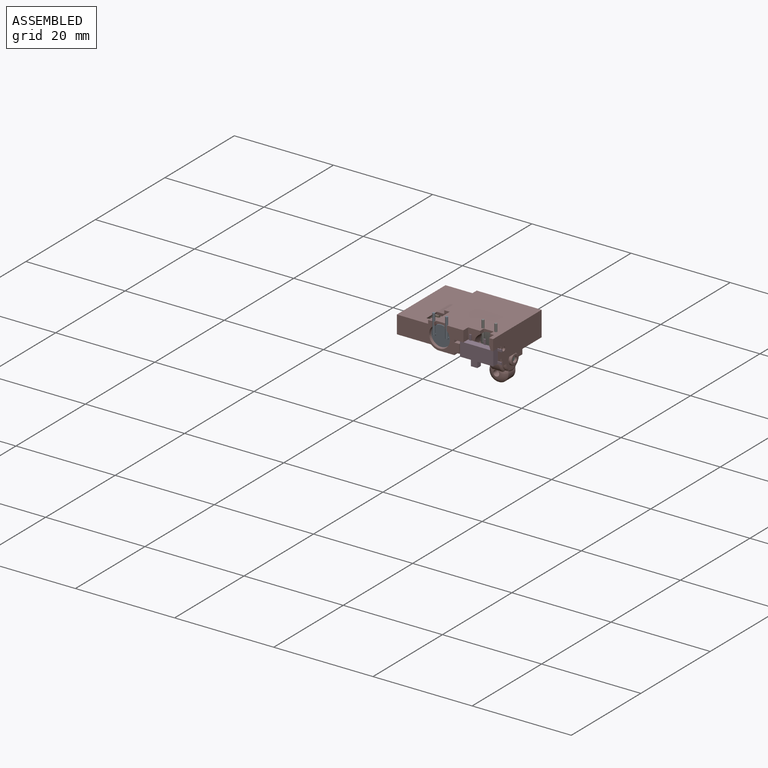
[diagram: assembled view]
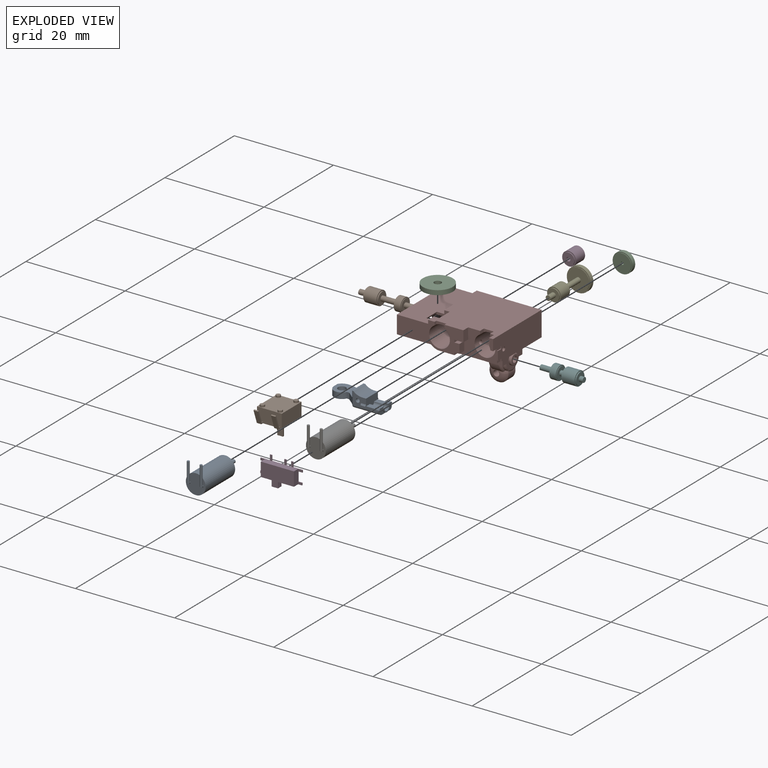
[diagram: exploded view]
GUIDED TOUR — MATED ASSEMBLY (Onshape document ec23bc95570d9c8ad12c1168, AutoMate assembly ec23bc95570d9c8ad12c1168_9f3f0885a3b1d8d422f5f965_d5d199825248745248bcec3c_default)

This assembly has 12 components, labeled P0..P11 below (a component is one placed occurrence of a part; the same part can appear more than once), held together by 23 mates. A mate is a constraint between two components; its type names the relative motion it leaves free:
  FASTENED — locks the two components together rigidly (no relative motion),
  PLANAR — leaves sliding in the plane through the listed point (normal = the listed direction) and rotation about that normal free,
  SLIDER — leaves translation along the listed axis free.
Axis/direction vectors are unit vectors and 'through' points are millimeter coordinates, both in the assembly's world frame.

MATES
  1. PLANAR "Planar 16": P7 <-> P3, direction (1.000, 0.000, 0.000) through (19.40, 0.07, 0.28) mm
  2. PLANAR "Planar 9": P5 <-> P7, direction (1.000, 0.000, 0.000) through (17.70, -0.42, -3.81) mm
  3. PLANAR "Planar 8": P6 <-> P2, direction (0.000, 1.000, 0.000) through (16.78, 5.00, 0.19) mm
  4. SLIDER "Slider 5": P9 <-> P10, axis (0.000, 0.000, 1.000) through (3.10, -0.07, -1.86) mm
  5. PLANAR "Planar 2": P9 <-> P7, direction (1.000, 0.000, 0.000) through (5.60, -0.42, -0.26) mm
  6. PLANAR "Planar 1": P7 <-> P9, direction (0.000, 0.000, -1.000) through (2.88, -1.22, 1.49) mm
  7. SLIDER "Slider 1": P7 <-> P1, axis (-1.000, 0.000, 0.000) through (0.00, 3.93, -2.31) mm
  8. PLANAR "Planar 5": P0 <-> P11, direction (0.000, 1.000, 0.000) through (8.60, 2.50, 0.19) mm
  9. PLANAR "Planar 4": P9 <-> P10, direction (0.000, 0.000, -1.000) through (3.10, -0.07, -1.86) mm
  10. PLANAR "Planar 10": P7 <-> P8, direction (0.000, 0.000, -1.000) through (9.51, -0.42, -2.31) mm
  11. SLIDER "Slider 3": P2 <-> P6, axis (0.000, -1.000, 0.000) through (16.78, 5.30, 0.19) mm
  12. SLIDER "Slider 2": P7 <-> P4, axis (0.000, -1.000, 0.000) through (13.00, 5.08, -1.11) mm
  13. PLANAR "Planar 15": P3 <-> P7, direction (0.000, 0.000, 1.000) through (16.04, -6.69, 0.49) mm
  14. FASTENED "Fastened 2": P6 <-> P7, direction (0.000, -1.000, 0.000) through (16.78, 4.08, 0.19) mm
  15. FASTENED "Fastened 1": P0 <-> P7, direction (0.000, -1.000, 0.000) through (8.60, 1.58, 0.19) mm
  16. PLANAR "Planar 11": P8 <-> P7, direction (0.000, 1.000, 0.000) through (8.43, 1.28, -3.29) mm
  17. PLANAR "Planar 7": P7 <-> P4, direction (0.000, 1.000, 0.000) through (13.00, 5.08, -1.11) mm
  18. PLANAR "Planar 3": P7 <-> P9, direction (0.000, -1.000, 0.000) through (3.10, 2.53, -0.06) mm
  19. PLANAR "Planar 6": P1 <-> P7, direction (1.000, 0.000, 0.000) through (9.30, 3.93, -2.31) mm
  20. PLANAR "Planar 13": P9 <-> P10, direction (0.000, 0.000, -1.000) through (3.10, -0.07, -1.86) mm
  21. SLIDER "Slider 4": P5 <-> P7, axis (-1.000, 0.000, 0.000) through (17.70, -0.42, -3.81) mm
  22. PLANAR "Planar 12": P7 <-> P8, direction (-1.000, 0.000, 0.000) through (6.70, 1.88, -2.86) mm
  23. PLANAR "Planar 14": P7 <-> P3, direction (0.000, -1.000, 0.000) through (14.88, -6.02, -0.41) mm

ASSEMBLY ORDER
  1. P7 — the base component [order heuristic]
  2. P1 — core [order heuristic]
  3. P8 — core [order heuristic]
  4. P5 — core [order heuristic]
  5. P6 — core [order heuristic]
  6. P9 — core [order heuristic]
  7. P4 — core [order heuristic]
  8. P2 — core [order heuristic]
  9. P10 — core [order heuristic]
  10. P3 [order verified]
  11. P0 [order verified]
  12. P11 [order verified]
(P3 verified with a relaxed clearance tolerance: the source model stores slight part interference there.)
Order-tag legend:
  [order verified] — this step's position reverses a verified removal order: the component was checked to insert without passing through the ones already placed.
  [order heuristic] — the first 9 components form the assembly's core: parts whose collision-free extraction could not be verified, listed in mate-graph order.

Of the 12 components, 6 carry the full construction recipe — the FeatureScript program that regenerates the part's solid from scratch; the rest are supplied as boundary geometry only.
Each toured component is shown spotlighted twice — in the assembled view, then in the exploded view, where a leader line traces a displaced component back to its assembled socket (saturated green if recipe-attached, orange if geometry-only; every other component desaturated gray) — followed by its recipe or geometry summary and the mates that hold it.
NOTE — this tour is split across 2 documents so each fits a 32k-token context. This is document 1: the component sections continue in the remaining 1 document, each repeating the header above.
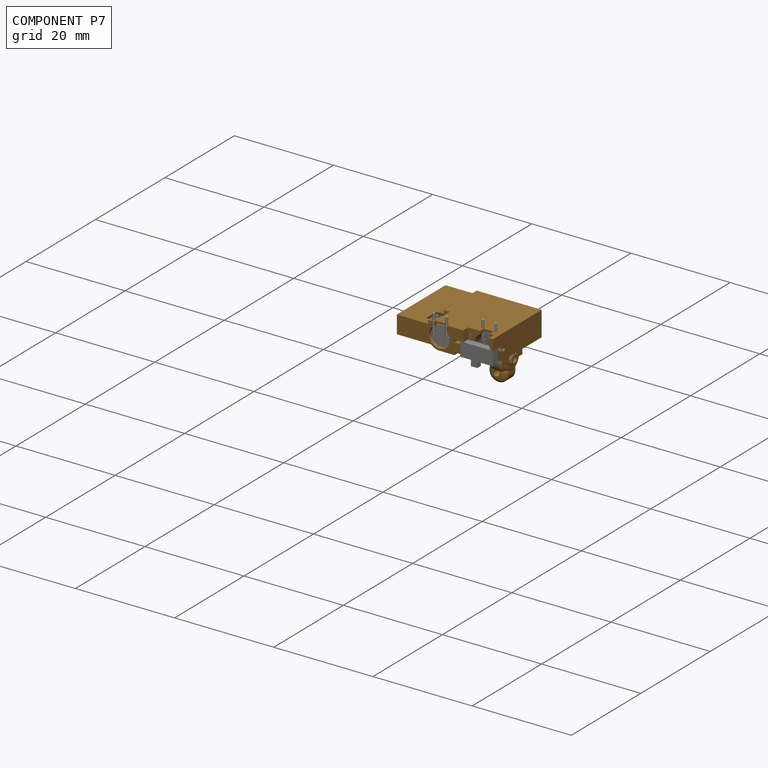
[diagram: component P7 — assembled]
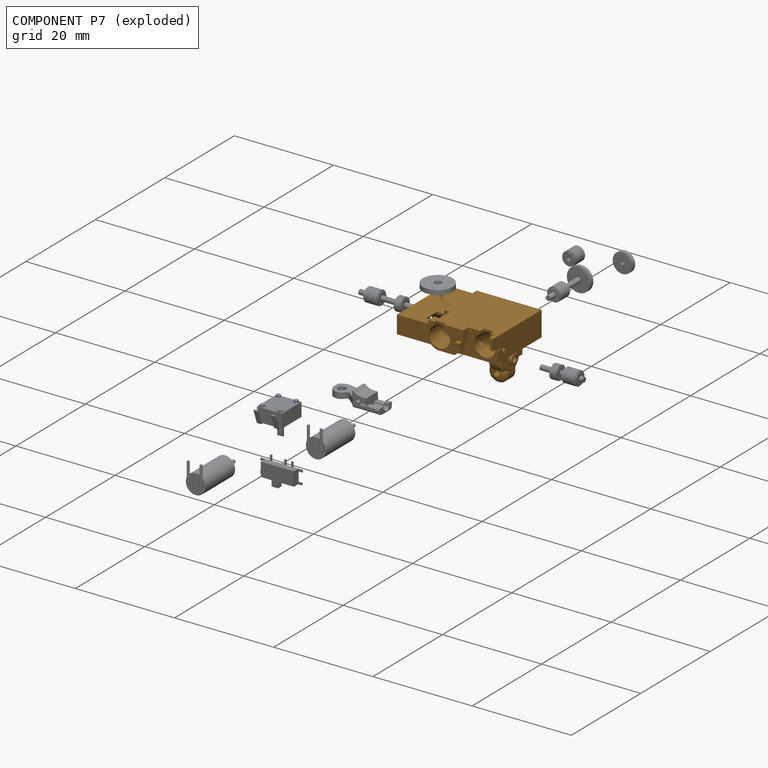
[diagram: component P7 — exploded]
COMPONENT P7 — geometry summary (no construction recipe available for this part):
  bounding box: 19.4 x 14.0 x 10.9 mm
  B-rep topology: 1 solid, 173 faces, 1014 edges
  volume: 718 mm^3 (24% of its bounding box)
Held by: PLANAR mate "Planar 16" to P3; PLANAR mate "Planar 9" to P5; PLANAR mate "Planar 2" to P9; PLANAR mate "Planar 1" to P9; SLIDER mate "Slider 1" to P1; PLANAR mate "Planar 10" to P8; SLIDER mate "Slider 2" to P4; PLANAR mate "Planar 15" to P3; FASTENED mate "Fastened 2" to P6; FASTENED mate "Fastened 1" to P0; PLANAR mate "Planar 11" to P8; PLANAR mate "Planar 7" to P4; PLANAR mate "Planar 3" to P9; PLANAR mate "Planar 6" to P1; SLIDER mate "Slider 4" to P5; PLANAR mate "Planar 12" to P8; PLANAR mate "Planar 14" to P3.
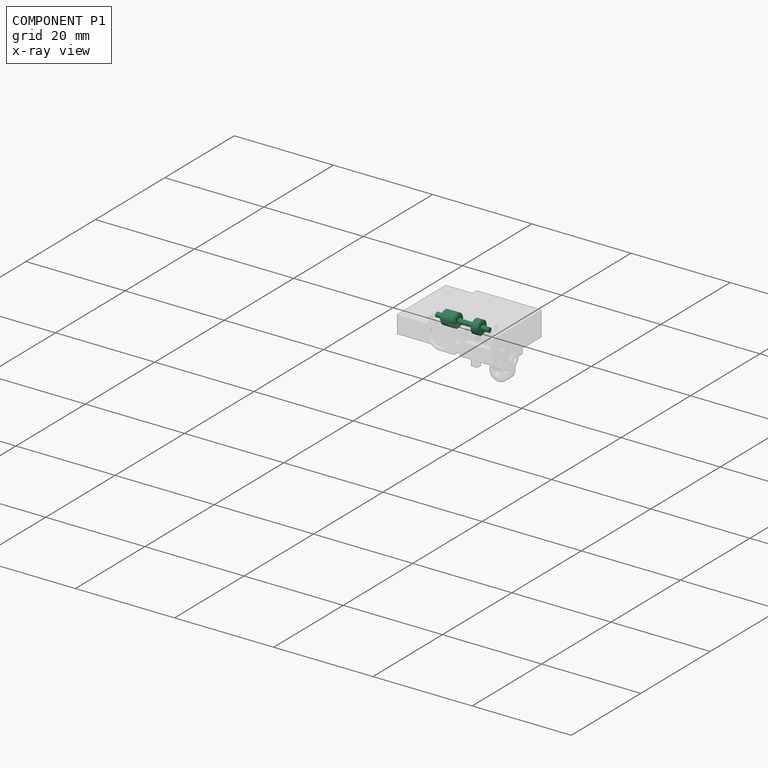
[diagram: component P1 — x-ray view]
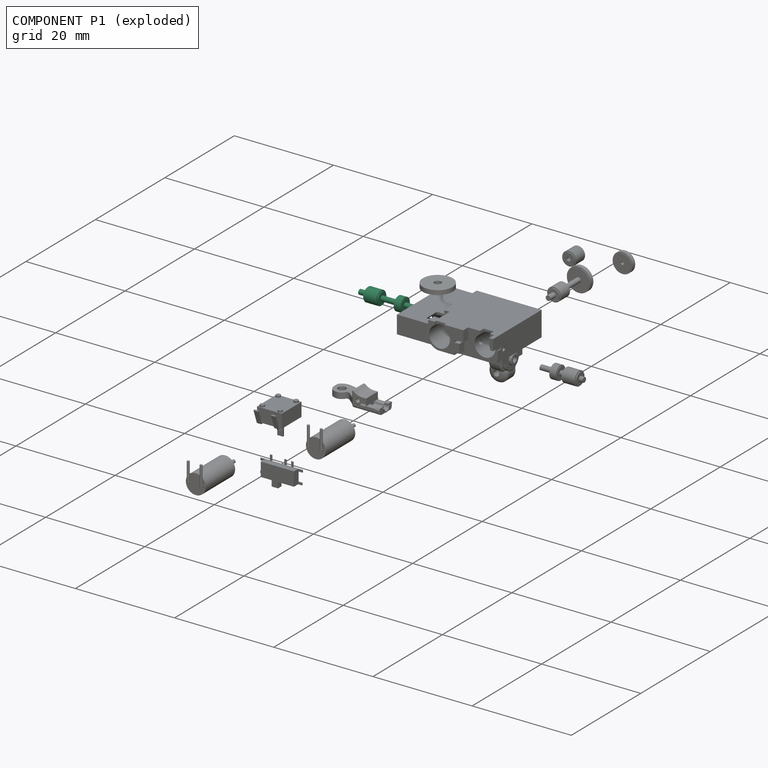
[diagram: component P1 — exploded]
COMPONENT P1 — recipe-attached (CADFS 00316017, mesh-verified: the recipe's output STEP matches this component's geometry to below the mesh-comparison resolution (tessellation chordal tolerance ~0.0171 mm)).
Held by: SLIDER mate "Slider 1" to P7; PLANAR mate "Planar 6" to P7.
Construction recipe (FeatureScript — the CAD program that rebuilds this solid; sketch coordinates are in the units given by the * unit suffixes, e.g. mm):

FeatureScript 1511;
import(path : "onshape/std/geometry.fs", version : "1511.0");
import(path : "onshape/std/common.fs", version : "1511.0");
const mm = millimeter;
const VERTEX = EntityType.VERTEX;
const EDGE = EntityType.EDGE;
const FACE = EntityType.FACE;
const BODY = EntityType.BODY;
function v(x, y){return vector(x, y);}
function OD(order){return orderDisambiguation(order);}
function OSD(set){return originalSetDisambiguation(set);}
function TD(topology){return topologyDisambiguation(topology);}
function TDD(query){return trueDependencyDisambiguation(query);}
function sQuery(a, b, c) {return sketchEntityQuery(a, b, c);}

annotation { "Feature Type Name" : "Feature", "Feature Type Description" : "" }
export const myFeature = defineFeature(function(context is Context, id is Id, definition is map)
    precondition{}
    {
        {
            var Q0;
            Q0=qCreatedBy(makeId("Right.planeOp"),FACE);
            var sketch = newSketch(context, id + "F0", { "sketchPlane" : qUnion([Q0])});
            skLineSegment(sketch, "E0", {"start": v(-1.5, 0) * mm, "end": v(-1.5, 0.5) * mm});
            skLineSegment(sketch, "E1", {"start": v(-1.5, 0.5) * mm, "end": v(0, 0.5) * mm});
            skLineSegment(sketch, "E2", {"start": v(0, 0.5) * mm, "end": v(0, 1.4) * mm});
            skLineSegment(sketch, "E3", {"start": v(0, 1.4) * mm, "end": v(3, 1.4) * mm});
            skLineSegment(sketch, "E4", {"start": v(3, 1.4) * mm, "end": v(3, 0.5) * mm});
            skLineSegment(sketch, "E5", {"start": v(3, 0.5) * mm, "end": v(6.2, 0.5) * mm});
            skLineSegment(sketch, "E6", {"start": v(6.2, 0.5) * mm, "end": v(6.2, 1.2) * mm});
            skLineSegment(sketch, "E7", {"start": v(6.2, 1.2) * mm, "end": v(7.7, 1.2) * mm});
            skLineSegment(sketch, "E8", {"start": v(7.7, 1.2) * mm, "end": v(7.7, 0.5) * mm});
            skLineSegment(sketch, "E9", {"start": v(7.7, 0.5) * mm, "end": v(9.2, 0.5) * mm});
            skLineSegment(sketch, "E10", {"start": v(9.2, 0.5) * mm, "end": v(9.2, 0) * mm});
            skLineSegment(sketch, "E11", {"start": v(9.2, 0) * mm, "end": v(-1.5, 0) * mm});
            skSolve(sketch);
        }
        {
            var Q0;
            Q0 = qSketchRegion(id + "F0", true);
            var Q1;
            Q1=sQuery(id+"F0.wireOp",EDGE,"E11");
            revolve(context, id + "F1", {"surfaceOperationType" : NewSurfaceOperationType.NEW, "entities" : qUnion([Q0]), "axis" : qUnion([Q1]), "revolveType" : RevolveType.FULL});
        }
        {
            var Q0;
            Q0=qCreatedBy(makeId("Right.planeOp"),FACE);
            var sketch = newSketch(context, id + "F2", { "sketchPlane" : qUnion([Q0])});
            skLineSegment(sketch, "E12.0", {"start": v(3, 1.4) * mm, "end": v(3, -1.4) * mm});
            skLineSegment(sketch, "E13", {"start": v(0, 1.4) * mm, "end": v(3, 1.4) * mm});
            skLineSegment(sketch, "E14.0", {"start": v(0, 1.4) * mm, "end": v(0, -1.4) * mm});
            skLineSegment(sketch, "E15.bottom", {"start": v(0, 1.4) * mm, "end": v(0.2, 1.4) * mm});
            skLineSegment(sketch, "E15.top", {"start": v(0, 1.2) * mm, "end": v(0.2, 1.2) * mm});
            skLineSegment(sketch, "E15.left", {"start": v(0, 1.4) * mm, "end": v(0, 1.2) * mm});
            skLineSegment(sketch, "E15.right", {"start": v(0.2, 1.4) * mm, "end": v(0.2, 1.2) * mm});
            skLineSegment(sketch, "E16.bottom", {"start": v(3, 1.4) * mm, "end": v(2.8, 1.4) * mm});
            skLineSegment(sketch, "E16.top", {"start": v(3, 1.2) * mm, "end": v(2.8, 1.2) * mm});
            skLineSegment(sketch, "E16.left", {"start": v(3, 1.4) * mm, "end": v(3, 1.2) * mm});
            skLineSegment(sketch, "E16.right", {"start": v(2.8, 1.4) * mm, "end": v(2.8, 1.2) * mm});
            skLineSegment(sketch, "E17", {"start": v(0, 0) * mm, "end": v(3, 0) * mm, "construction": true});
            skSolve(sketch);
        }
        {
            var Q0;
            Q0 = qSketchRegion(id + "F2", true);
            var Q1;
            Q1=sQuery(id+"F2.wireOp",EDGE,"E17");
            revolve(context, id + "F3", {"operationType" : NewBodyOperationType.REMOVE, "surfaceOperationType" : NewSurfaceOperationType.NEW, "entities" : qUnion([Q0]), "axis" : qUnion([Q1]), "revolveType" : RevolveType.FULL, "oppositeDirection" : true});
        }
        {
            var Q0;
            Q0=qCreatedBy(makeId("Right.planeOp"),FACE);
            var sketch = newSketch(context, id + "F4", { "sketchPlane" : qUnion([Q0])});
            skLineSegment(sketch, "E18", {"start": v(6.7, 1.2) * mm, "end": v(7.7, 1.2) * mm});
            skLineSegment(sketch, "E19.0", {"start": v(6.2, 1.2) * mm, "end": v(6.2, -1.2) * mm});
            skLineSegment(sketch, "E20.0", {"start": v(7.7, 1.2) * mm, "end": v(7.7, -1.2) * mm});
            skLineSegment(sketch, "E21.bottom", {"start": v(6.3, 1.2) * mm, "end": v(7.6, 1.2) * mm});
            skLineSegment(sketch, "E21.top", {"start": v(6.3, 1.4) * mm, "end": v(7.6, 1.4) * mm});
            skLineSegment(sketch, "E21.left", {"start": v(6.3, 1.2) * mm, "end": v(6.3, 1.4) * mm});
            skLineSegment(sketch, "E21.right", {"start": v(7.6, 1.2) * mm, "end": v(7.6, 1.4) * mm});
            skLineSegment(sketch, "E22", {"start": v(6.2, 0) * mm, "end": v(7.7, 0) * mm, "construction": true});
            skSolve(sketch);
        }
        {
            var Q0;
            Q0 = qSketchRegion(id + "F4", true);
            var Q1;
            Q1=sQuery(id+"F4.wireOp",EDGE,"E22");
            revolve(context, id + "F5", {"operationType" : NewBodyOperationType.ADD, "surfaceOperationType" : NewSurfaceOperationType.NEW, "entities" : qUnion([Q0]), "axis" : qUnion([Q1]), "revolveType" : RevolveType.FULL});
        }
    });
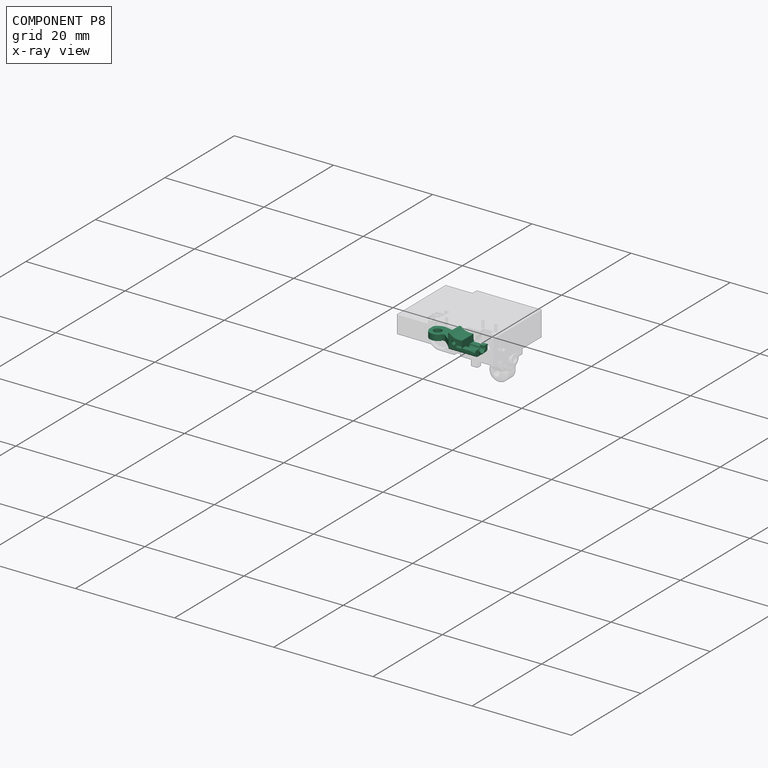
[diagram: component P8 — x-ray view]
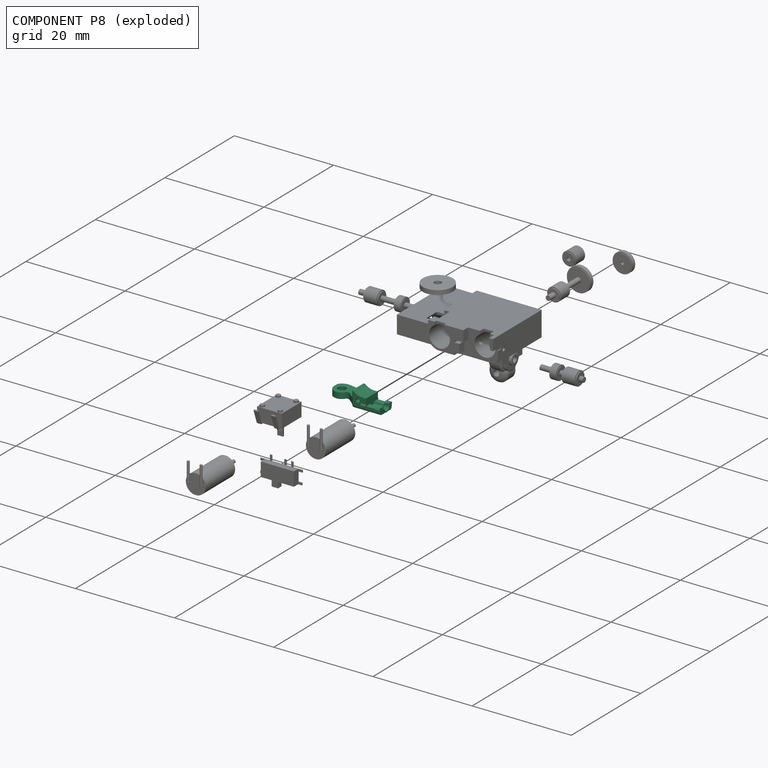
[diagram: component P8 — exploded]
COMPONENT P8 — recipe-attached (CADFS 00354752, mesh-verified: the recipe's output STEP matches this component's geometry to below the mesh-comparison resolution (tessellation chordal tolerance ~0.0181 mm)).
Held by: PLANAR mate "Planar 10" to P7; PLANAR mate "Planar 11" to P7; PLANAR mate "Planar 12" to P7.
Construction recipe (FeatureScript — the CAD program that rebuilds this solid; sketch coordinates are in the units given by the * unit suffixes, e.g. mm):

FeatureScript 1511;
import(path : "onshape/std/geometry.fs", version : "1511.0");
import(path : "onshape/std/common.fs", version : "1511.0");
const mm = millimeter;
const VERTEX = EntityType.VERTEX;
const EDGE = EntityType.EDGE;
const FACE = EntityType.FACE;
const BODY = EntityType.BODY;
function v(x, y){return vector(x, y);}
function OD(order){return orderDisambiguation(order);}
function OSD(set){return originalSetDisambiguation(set);}
function TD(topology){return topologyDisambiguation(topology);}
function TDD(query){return trueDependencyDisambiguation(query);}
function sQuery(a, b, c) {return sketchEntityQuery(a, b, c);}

annotation { "Feature Type Name" : "Feature", "Feature Type Description" : "" }
export const myFeature = defineFeature(function(context is Context, id is Id, definition is map)
    precondition{}
    {
        {
            var Q0;
            Q0=qCreatedBy(makeId("Front.planeOp"),FACE);
            var sketch = newSketch(context, id + "F0", { "sketchPlane" : qUnion([Q0])});
            skLineSegment(sketch, "E0", {"start": v(0, 0) * mm, "end": v(0, 2.4) * mm});
            skLineSegment(sketch, "E1", {"start": v(0, 2.4) * mm, "end": v(4.7, 2.4) * mm});
            skLineSegment(sketch, "E2", {"start": v(4.7, 2.4) * mm, "end": v(4.7, 2.4) * mm});
            skLineSegment(sketch, "E3", {"start": v(4.7, 1.8) * mm, "end": v(4.7, 2.4) * mm});
            skLineSegment(sketch, "E4", {"start": v(4.7, 1.8) * mm, "end": v(9.9, 1.8) * mm});
            skLineSegment(sketch, "E5", {"start": v(9.9, 1.8) * mm, "end": v(9.9, 0.6) * mm});
            skLineSegment(sketch, "E6", {"start": v(9.9, 0.6) * mm, "end": v(4.9, 0.6) * mm});
            skLineSegment(sketch, "E7", {"start": v(4.9, 0.6) * mm, "end": v(4.9, -0.7) * mm});
            skLineSegment(sketch, "E8", {"start": v(2.8, 0) * mm, "end": v(0, 0) * mm});
            skArc(sketch, "E9", {"start": v(4.53, -0.7) * mm, "mid": v(3.74, -0.18) * mm, "end": v(2.8, 0) * mm});
            skLineSegment(sketch, "E10", {"start": v(4.53, -0.7) * mm, "end": v(4.9, -0.7) * mm});
            skPoint(sketch, "E11.orphan", {"position": v(4.9, 0) * mm});
            skSolve(sketch);
        }
        {
            var Q0;
            Q0 = qSketchRegion(id + "F0", true);
            extrude(context, id + "F1", {"entities" : qUnion([Q0]), "endBound" : BoundingType.SYMMETRIC, "depth" : 3.4 * mm});
        }
        {
            var Q0;
            Q0=makeQuery(id+"F1.opExtrude","SWEPT_FACE",FACE,{"disambiguationData":[OSD([sQuery(id+"F0.wireOp",EDGE,"E4")])]});
            var sketch = newSketch(context, id + "F2", { "sketchPlane" : qUnion([Q0])});
            skCircle(sketch, "E12", {"center": v(8.3, 0.35) * mm, "radius": 0.8 * mm});
            skArc(sketch, "E13", {"start": v(9.9, 0.35) * mm, "mid": v(8.65, -1.21) * mm, "end": v(6.85, -0.33) * mm});
            skLineSegment(sketch, "E14", {"start": v(8.3, 0.35) * mm, "end": v(6.85, -0.33) * mm, "construction": true});
            skLineSegment(sketch, "E15", {"start": v(4.7, -1.7) * mm, "end": v(6.35, -0.33) * mm});
            skLineSegment(sketch, "E16", {"start": v(6.35, -0.33) * mm, "end": v(6.85, -0.33) * mm});
            skLineSegment(sketch, "E17", {"start": v(9.9, 1.7) * mm, "end": v(9.9, 1.37) * mm});
            skLineSegment(sketch, "E18", {"start": v(9.9, -1.7) * mm, "end": v(4.7, -1.7) * mm});
            skPoint(sketch, "E19.orphan", {"position": v(6.85, -0.33) * mm});
            skLineSegment(sketch, "E20", {"start": v(9.9, 1.7) * mm, "end": v(9.64, 1.7) * mm});
            skPoint(sketch, "E21.orphan", {"position": v(9.9, 0.35) * mm});
            skArc(sketch, "E22", {"start": v(9.9, 1.37) * mm, "mid": v(9.78, 1.54) * mm, "end": v(9.64, 1.7) * mm});
            skLineSegment(sketch, "E23.trimOffspring", {"start": v(9.9, 0.35) * mm, "end": v(9.9, -1.7) * mm});
            skSolve(sketch);
        }
        {
            var Q0;
            Q0 = qSketchRegion(id + "F2", true);
            extrude(context, id + "F3", {"entities" : qUnion([Q0]), "operationType" : NewBodyOperationType.REMOVE, "endBound" : BoundingType.THROUGH_ALL, "oppositeDirection" : true, "depth" : 25 * mm});
        }
        {
            var Q0;
            Q0=makeQuery(id+"F1.opExtrude","SWEPT_FACE",FACE,{"disambiguationData":[OSD([sQuery(id+"F0.wireOp",EDGE,"E4")])]});
            var sketch = newSketch(context, id + "F4", { "sketchPlane" : qUnion([Q0])});
            skArc(sketch, "E24", {"start": v(9.64, 1.7) * mm, "mid": v(8.87, 2.16) * mm, "end": v(7.98, 2.22) * mm});
            skLineSegment(sketch, "E25", {"start": v(4.9, 1.7) * mm, "end": v(7.98, 2.22) * mm});
            skLineSegment(sketch, "E26", {"start": v(4.9, 1.7) * mm, "end": v(9.64, 1.7) * mm});
            skSolve(sketch);
        }
        {
            var Q0;
            Q0=makeQuery(id+"F4.imprint","IMPRINT",FACE,{"disambiguationData":[TD([[makeQuery(id+"F4.imprint","IMPRINT",EDGE,{"derivedFrom":sQuery(id+"F4.wireOp",EDGE,"E24")}),1.0]])]});
            var Q1;
            Q1=makeQuery(id+"F1.opExtrude","SWEPT_FACE",FACE,{"disambiguationData":[OSD([sQuery(id+"F0.wireOp",EDGE,"E6")])]});
            extrude(context, id + "F5", {"entities" : qUnion([Q0]), "operationType" : NewBodyOperationType.ADD, "endBound" : BoundingType.UP_TO_SURFACE, "oppositeDirection" : true, "endBoundEntityFace" : qUnion([Q1]), "depth" : 25 * mm});
        }
        {
            var Q0;
            Q0=makeQuery(id+"F1.opExtrude","SWEPT_FACE",FACE,{"disambiguationData":[OSD([sQuery(id+"F0.wireOp",EDGE,"E0")])]});
            var sketch = newSketch(context, id + "F6", { "sketchPlane" : qUnion([Q0])});
            skLineSegment(sketch, "E27.bottom", {"start": v(1.7, 0) * mm, "end": v(-1.7, 0) * mm});
            skLineSegment(sketch, "E27.top", {"start": v(1.7, 1.4) * mm, "end": v(0.6, 1.4) * mm});
            skLineSegment(sketch, "E27.left", {"start": v(1.7, 0) * mm, "end": v(1.7, 1.4) * mm});
            skLineSegment(sketch, "E27.right", {"start": v(-1.7, 0) * mm, "end": v(-1.7, 1.4) * mm});
            skArc(sketch, "E28", {"start": v(0.6, 1.4) * mm, "mid": v(0, 2) * mm, "end": v(-0.6, 1.4) * mm});
            skLineSegment(sketch, "E29.trimOffspring", {"start": v(-0.6, 1.4) * mm, "end": v(-1.7, 1.4) * mm});
            skSolve(sketch);
        }
        {
            var Q0;
            Q0 = qSketchRegion(id + "F6", true);
            extrude(context, id + "F7", {"entities" : qUnion([Q0]), "operationType" : NewBodyOperationType.REMOVE, "oppositeDirection" : true, "depth" : 2 * mm});
        }
        {
            var Q0;
            Q0=makeQuery(id+"F1.opExtrude","SWEPT_FACE",FACE,{"disambiguationData":[OSD([sQuery(id+"F0.wireOp",EDGE,"E0")])]});
            var sketch = newSketch(context, id + "F8", { "sketchPlane" : qUnion([Q0])});
            skArc(sketch, "E30", {"start": v(0.7, 1.4) * mm, "mid": v(0, 2.1) * mm, "end": v(-0.7, 1.4) * mm});
            skLineSegment(sketch, "E31", {"start": v(-0.7, 1.1) * mm, "end": v(-1.7, 1.1) * mm});
            skLineSegment(sketch, "E32", {"start": v(1.7, 2.4) * mm, "end": v(1.7, 1.1) * mm});
            skLineSegment(sketch, "E33", {"start": v(1.7, 1.1) * mm, "end": v(0.7, 1.1) * mm});
            skLineSegment(sketch, "E34", {"start": v(0.7, 1.4) * mm, "end": v(0.7, 1.1) * mm});
            skLineSegment(sketch, "E35", {"start": v(-0.7, 1.4) * mm, "end": v(-0.7, 1.1) * mm});
            skLineSegment(sketch, "E36", {"start": v(1.7, 2.4) * mm, "end": v(-1.7, 2.4) * mm});
            skLineSegment(sketch, "E37", {"start": v(-1.7, 2.4) * mm, "end": v(-1.7, 1.1) * mm});
            skSolve(sketch);
        }
        {
            var Q0;
            Q0 = qSketchRegion(id + "F8", true);
            extrude(context, id + "F9", {"entities" : qUnion([Q0]), "operationType" : NewBodyOperationType.ADD, "depth" : 0.8 * mm});
        }
        {
            var Q0;
            Q0=makeQuery(id+"F9.opExtrude","CAP_FACE",FACE,{"disambiguationData":[OSD([sQuery(id+"F8.wireOp",EDGE,"E30"),sQuery(id+"F8.wireOp",EDGE,"33daba41-ab30-421a-8f09-6baf427ecfd6"),sQuery(id+"F8.wireOp",EDGE,"E31"),sQuery(id+"F8.wireOp",EDGE,"E32"),sQuery(id+"F8.wireOp",EDGE,"E33"),sQuery(id+"F8.wireOp",EDGE,"E34"),sQuery(id+"F8.wireOp",EDGE,"E35"),sQuery(id+"F8.wireOp",EDGE,"E36"),sQuery(id+"F8.wireOp",EDGE,"E37"),sQuery(id+"F8.wireOp",EDGE,"b7cedbdc-8d8d-4e8a-a9b7-a7e40b9fc0be.trimOffspring")])],"isStart":false});
            var sketch = newSketch(context, id + "F10", { "sketchPlane" : qUnion([Q0])});
            skArc(sketch, "E38", {"start": v(0.7, 1.4) * mm, "mid": v(0, 2.1) * mm, "end": v(-0.7, 1.4) * mm});
            skArc(sketch, "E39", {"start": v(0.9, 1.4) * mm, "mid": v(0, 2.3) * mm, "end": v(-0.9, 1.4) * mm});
            skLineSegment(sketch, "E40", {"start": v(0.7, 1.4) * mm, "end": v(0.9, 1.4) * mm});
            skLineSegment(sketch, "E41", {"start": v(-0.7, 1.4) * mm, "end": v(-0.9, 1.4) * mm});
            skSolve(sketch);
        }
        {
            var Q0;
            Q0 = qSketchRegion(id + "F10", true);
            extrude(context, id + "F11", {"entities" : qUnion([Q0]), "operationType" : NewBodyOperationType.ADD, "depth" : 0.2 * mm});
        }
        {
            var Q0;
            Q0=makeQuery(id+"F9.boolean.opBoolean","MERGE",FACE,{"derivedFrom":[makeQuery(id+"F1.opExtrude","CAP_FACE",FACE,{"disambiguationData":[OSD([sQuery(id+"F0.wireOp",EDGE,"E0"),sQuery(id+"F0.wireOp",EDGE,"E1"),sQuery(id+"F0.wireOp",EDGE,"E3"),sQuery(id+"F0.wireOp",EDGE,"E4"),sQuery(id+"F0.wireOp",EDGE,"E5"),sQuery(id+"F0.wireOp",EDGE,"E6"),sQuery(id+"F0.wireOp",EDGE,"E7"),sQuery(id+"F0.wireOp",EDGE,"E8"),sQuery(id+"F0.wireOp",EDGE,"E9"),sQuery(id+"F0.wireOp",EDGE,"E10")])],"isStart":false}),makeQuery(id+"F9.opExtrude","SWEPT_FACE",FACE,{"disambiguationData":[OSD([sQuery(id+"F8.wireOp",EDGE,"E32")])]})]});
            var sketch = newSketch(context, id + "F12", { "sketchPlane" : qUnion([Q0])});
            skPoint(sketch, "E42", {"position": v(3.7, 0.8) * mm});
            skCircle(sketch, "E43", {"center": v(3.7, 0.8) * mm, "radius": 0.4 * mm});
            skSolve(sketch);
        }
        {
            var Q0;
            Q0 = qSketchRegion(id + "F12", true);
            extrude(context, id + "F13", {"entities" : qUnion([Q0]), "operationType" : NewBodyOperationType.REMOVE, "endBound" : BoundingType.THROUGH_ALL, "oppositeDirection" : true, "depth" : 25 * mm});
        }
        {
            var Q0;
            Q0=makeQuery(id+"F9.opExtrude","CAP_FACE",FACE,{"disambiguationData":[OSD([sQuery(id+"F8.wireOp",EDGE,"E30"),sQuery(id+"F8.wireOp",EDGE,"E31"),sQuery(id+"F8.wireOp",EDGE,"E32"),sQuery(id+"F8.wireOp",EDGE,"E33"),sQuery(id+"F8.wireOp",EDGE,"E34"),sQuery(id+"F8.wireOp",EDGE,"E35"),sQuery(id+"F8.wireOp",EDGE,"E36"),sQuery(id+"F8.wireOp",EDGE,"E37")])],"isStart":false});
            var sketch = newSketch(context, id + "F14", { "sketchPlane" : qUnion([Q0])});
            skLineSegment(sketch, "E44", {"start": v(1.7, 1.4) * mm, "end": v(1.9, 1.4) * mm});
            skLineSegment(sketch, "E45", {"start": v(1.9, 1.4) * mm, "end": v(1.7, 1.1) * mm});
            skLineSegment(sketch, "E46", {"start": v(1.7, 1.1) * mm, "end": v(1.7, 1.4) * mm});
            skLineSegment(sketch, "E47", {"start": v(-1.7, 1.4) * mm, "end": v(-1.9, 1.4) * mm});
            skLineSegment(sketch, "E48", {"start": v(-1.9, 1.4) * mm, "end": v(-1.7, 1.1) * mm});
            skLineSegment(sketch, "E49", {"start": v(-1.7, 1.1) * mm, "end": v(-1.7, 1.4) * mm});
            skSolve(sketch);
        }
        {
            var Q0;
            Q0 = qSketchRegion(id + "F14", true);
            var Q1;
            {var subQ0=sQuery(id+"F8.wireOp",EDGE,"E30");var subQ2=sQuery(id+"F8.wireOp",EDGE,"E32");var subQ3=sQuery(id+"F8.wireOp",EDGE,"E33");var subQ4=sQuery(id+"F8.wireOp",EDGE,"E34");Q1=makeQuery(id+"F9.boolean.opBoolean","SPLIT",FACE,{"disambiguationData":[TD([makeQuery(id+"F7.boolean.opBoolean","COPY",FACE,{"derivedFrom":makeQuery(id+"F7.opExtrude","SWEPT_FACE",FACE,{"disambiguationData":[OSD([sQuery(id+"F6.wireOp",EDGE,"E27.top")])]})})])],"derivedFrom":makeQuery(id+"F9.opExtrude","CAP_FACE",FACE,{"disambiguationData":[OSD([subQ0,sQuery(id+"F8.wireOp",EDGE,"E31"),subQ2,subQ3,subQ4,sQuery(id+"F8.wireOp",EDGE,"E35"),sQuery(id+"F8.wireOp",EDGE,"E36"),sQuery(id+"F8.wireOp",EDGE,"E37")])],"isStart":true})});}
            extrude(context, id + "F15", {"entities" : qUnion([Q0]), "operationType" : NewBodyOperationType.ADD, "endBound" : BoundingType.UP_TO_SURFACE, "oppositeDirection" : true, "endBoundEntityFace" : qUnion([Q1]), "depth" : 5 * mm});
        }
        {
            var Q0;
            Q0=makeQuery(id+"F7.boolean.opBoolean","COPY",FACE,{"derivedFrom":makeQuery(id+"F7.opExtrude","CAP_FACE",FACE,{"disambiguationData":[OSD([sQuery(id+"F6.wireOp",EDGE,"E27.bottom"),sQuery(id+"F6.wireOp",EDGE,"E27.top"),sQuery(id+"F6.wireOp",EDGE,"E27.left"),sQuery(id+"F6.wireOp",EDGE,"E27.right"),sQuery(id+"F6.wireOp",EDGE,"E28"),sQuery(id+"F6.wireOp",EDGE,"E29.trimOffspring")])],"isStart":false})});
            var sketch = newSketch(context, id + "F16", { "sketchPlane" : qUnion([Q0])});
            skLineSegment(sketch, "E50.0", {"start": v(1.7, 1.4) * mm, "end": v(1.9, 1.4) * mm});
            skLineSegment(sketch, "E51.0", {"start": v(1.9, 1.4) * mm, "end": v(1.7, 1.1) * mm});
            skLineSegment(sketch, "E52.0", {"start": v(-1.7, 1.4) * mm, "end": v(-1.9, 1.4) * mm});
            skLineSegment(sketch, "E53.0", {"start": v(-1.9, 1.4) * mm, "end": v(-1.7, 1.1) * mm});
            skLineSegment(sketch, "E54", {"start": v(-1.7, 1.4) * mm, "end": v(-1.7, 1.1) * mm});
            skLineSegment(sketch, "E55", {"start": v(1.7, 1.4) * mm, "end": v(1.7, 1.1) * mm});
            skSolve(sketch);
        }
        {
            var Q0;
            Q0 = qSketchRegion(id + "F16", true);
            extrude(context, id + "F17", {"entities" : qUnion([Q0]), "operationType" : NewBodyOperationType.ADD, "oppositeDirection" : true, "depth" : 1 * mm});
        }
        {
            var Q0;
            Q0=makeQuery(id+"F9.boolean.opBoolean","MERGE",EDGE,{"derivedFrom":[makeQuery(id+"F1.opExtrude","CAP_EDGE",EDGE,{"disambiguationData":[OSD([sQuery(id+"F0.wireOp",EDGE,"E1")])],"isStart":false}),makeQuery(id+"F9.opExtrude","SWEPT_EDGE",EDGE,{"disambiguationData":[OSD([sQuery(id+"F8.wireOp",EDGE,"E32"),sQuery(id+"F8.wireOp",EDGE,"E36")])]})]});
            var Q1;
            Q1=makeQuery(id+"F9.boolean.opBoolean","MERGE",EDGE,{"derivedFrom":[makeQuery(id+"F1.opExtrude","CAP_EDGE",EDGE,{"disambiguationData":[OSD([sQuery(id+"F0.wireOp",EDGE,"E1")])],"isStart":true}),makeQuery(id+"F9.opExtrude","SWEPT_EDGE",EDGE,{"disambiguationData":[OSD([sQuery(id+"F8.wireOp",EDGE,"E36"),sQuery(id+"F8.wireOp",EDGE,"E37")])]})]});
            fillet(context, id + "F18", {"entities" : qUnion([Q0, Q1]), "radius" : 0.5 * mm, "tangentPropagation" : true, "allowEdgeOverflow" : false});
        }
        {
            var Q0;
            Q0=makeQuery(id+"F1.opExtrude","SWEPT_EDGE",EDGE,{"disambiguationData":[OSD([sQuery(id+"F0.wireOp",EDGE,"E3"),sQuery(id+"F0.wireOp",EDGE,"E4")])]});
            fillet(context, id + "F19", {"entities" : qUnion([Q0]), "radius" : 0.5 * mm, "tangentPropagation" : true, "allowEdgeOverflow" : false});
        }
    });
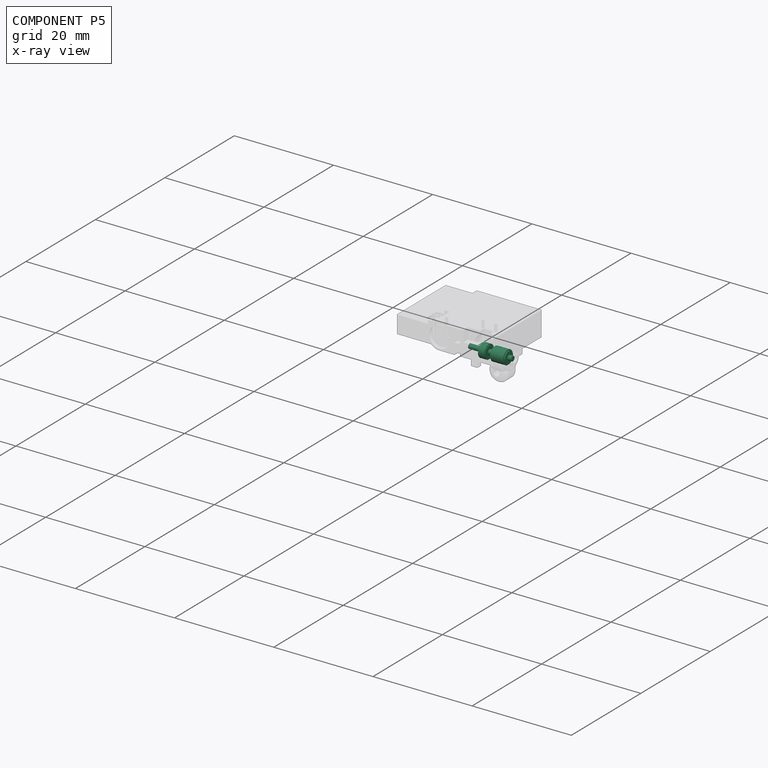
[diagram: component P5 — x-ray view]
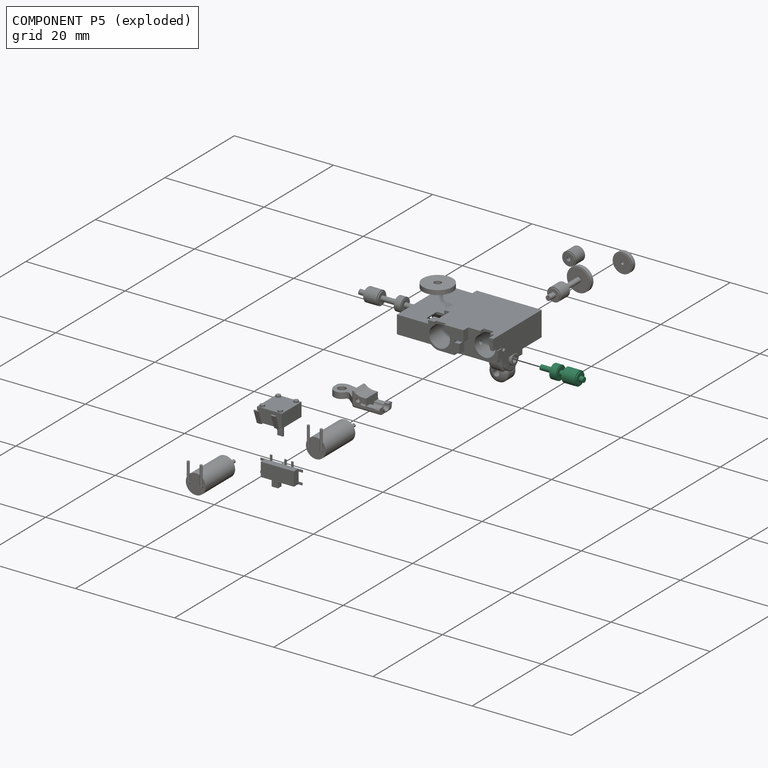
[diagram: component P5 — exploded]
COMPONENT P5 — recipe-attached (CADFS 00333564, mesh-verified: the recipe's output STEP matches this component's geometry to below the mesh-comparison resolution (tessellation chordal tolerance ~0.0143 mm)).
Held by: PLANAR mate "Planar 9" to P7; SLIDER mate "Slider 4" to P7.
Construction recipe (FeatureScript — the CAD program that rebuilds this solid; sketch coordinates are in the units given by the * unit suffixes, e.g. mm):

FeatureScript 1511;
import(path : "onshape/std/geometry.fs", version : "1511.0");
import(path : "onshape/std/common.fs", version : "1511.0");
const mm = millimeter;
const VERTEX = EntityType.VERTEX;
const EDGE = EntityType.EDGE;
const FACE = EntityType.FACE;
const BODY = EntityType.BODY;
function v(x, y){return vector(x, y);}
function OD(order){return orderDisambiguation(order);}
function OSD(set){return originalSetDisambiguation(set);}
function TD(topology){return topologyDisambiguation(topology);}
function TDD(query){return trueDependencyDisambiguation(query);}
function sQuery(a, b, c) {return sketchEntityQuery(a, b, c);}

annotation { "Feature Type Name" : "Feature", "Feature Type Description" : "" }
export const myFeature = defineFeature(function(context is Context, id is Id, definition is map)
    precondition{}
    {
        {
            var Q0;
            Q0=qCreatedBy(makeId("Right.planeOp"),FACE);
            var sketch = newSketch(context, id + "F0", { "sketchPlane" : qUnion([Q0])});
            skLineSegment(sketch, "E0", {"start": v(-0.8, 0) * mm, "end": v(-0.8, 0.5) * mm});
            skLineSegment(sketch, "E1", {"start": v(-0.8, 0.5) * mm, "end": v(0, 0.5) * mm});
            skLineSegment(sketch, "E2", {"start": v(0, 0.5) * mm, "end": v(0, 1.4) * mm});
            skLineSegment(sketch, "E3", {"start": v(0, 1.4) * mm, "end": v(3, 1.4) * mm});
            skLineSegment(sketch, "E4", {"start": v(3, 1.4) * mm, "end": v(3, 0.5) * mm});
            skLineSegment(sketch, "E5", {"start": v(3, 0.5) * mm, "end": v(3.9, 0.5) * mm});
            skLineSegment(sketch, "E6", {"start": v(3.9, 0.5) * mm, "end": v(3.9, 1.2) * mm});
            skLineSegment(sketch, "E7", {"start": v(3.9, 1.2) * mm, "end": v(5.4, 1.2) * mm});
            skLineSegment(sketch, "E8", {"start": v(5.4, 1.2) * mm, "end": v(5.4, 0.5) * mm});
            skLineSegment(sketch, "E9", {"start": v(5.4, 0.5) * mm, "end": v(7.9, 0.5) * mm});
            skLineSegment(sketch, "E10", {"start": v(7.9, 0.5) * mm, "end": v(7.9, 0) * mm});
            skLineSegment(sketch, "E11", {"start": v(7.9, 0) * mm, "end": v(-0.8, 0) * mm});
            skSolve(sketch);
        }
        {
            var Q0;
            Q0=qSketchRegion(id+"F0",true);
            var Q1;
            Q1=sQuery(id+"F0.wireOp",EDGE,"E11");
            revolve(context, id + "F1", {"entities" : qUnion([Q0]), "axis" : qUnion([Q1]), "revolveType" : RevolveType.FULL});
        }
        {
            var Q0;
            Q0=qCreatedBy(makeId("Right.planeOp"),FACE);
            var sketch = newSketch(context, id + "F2", { "sketchPlane" : qUnion([Q0])});
            skLineSegment(sketch, "E12.bottom", {"start": v(0, 1.4) * mm, "end": v(0.2, 1.4) * mm});
            skLineSegment(sketch, "E12.top", {"start": v(0, 1.2) * mm, "end": v(0.2, 1.2) * mm});
            skLineSegment(sketch, "E12.left", {"start": v(0, 1.4) * mm, "end": v(0, 1.2) * mm});
            skLineSegment(sketch, "E12.right", {"start": v(0.2, 1.4) * mm, "end": v(0.2, 1.2) * mm});
            skLineSegment(sketch, "E13.bottom", {"start": v(3, 1.4) * mm, "end": v(2.8, 1.4) * mm});
            skLineSegment(sketch, "E13.top", {"start": v(3, 1.2) * mm, "end": v(2.8, 1.2) * mm});
            skLineSegment(sketch, "E13.left", {"start": v(3, 1.4) * mm, "end": v(3, 1.2) * mm});
            skLineSegment(sketch, "E13.right", {"start": v(2.8, 1.4) * mm, "end": v(2.8, 1.2) * mm});
            skLineSegment(sketch, "E14", {"start": v(0, 1.4) * mm, "end": v(3, 1.4) * mm});
            skLineSegment(sketch, "E15", {"start": v(0, 0) * mm, "end": v(3, 0) * mm, "construction": true});
            skSolve(sketch);
        }
        {
            var Q0;
            Q0 = qSketchRegion(id + "F2", true);
            var Q1;
            Q1=sQuery(id+"F2.wireOp",EDGE,"E15");
            revolve(context, id + "F3", {"operationType" : NewBodyOperationType.REMOVE, "surfaceOperationType" : NewSurfaceOperationType.NEW, "entities" : qUnion([Q0]), "axis" : qUnion([Q1]), "revolveType" : RevolveType.FULL, "oppositeDirection" : true});
        }
        {
            var Q0;
            Q0=qCreatedBy(makeId("Right.planeOp"),FACE);
            var sketch = newSketch(context, id + "F4", { "sketchPlane" : qUnion([Q0])});
            skLineSegment(sketch, "E16.0", {"start": v(5.4, 1.2) * mm, "end": v(5.4, -1.2) * mm});
            skLineSegment(sketch, "E17.0", {"start": v(3.9, 1.2) * mm, "end": v(3.9, -1.2) * mm});
            skLineSegment(sketch, "E18", {"start": v(3.9, 1.2) * mm, "end": v(4.9, 1.2) * mm});
            skLineSegment(sketch, "E19.bottom", {"start": v(4, 1.2) * mm, "end": v(5.3, 1.2) * mm});
            skLineSegment(sketch, "E19.top", {"start": v(4, 1.4) * mm, "end": v(5.3, 1.4) * mm});
            skLineSegment(sketch, "E19.left", {"start": v(4, 1.2) * mm, "end": v(4, 1.4) * mm});
            skLineSegment(sketch, "E19.right", {"start": v(5.3, 1.2) * mm, "end": v(5.3, 1.4) * mm});
            skLineSegment(sketch, "E20", {"start": v(3.9, 0) * mm, "end": v(5.4, 0) * mm, "construction": true});
            skSolve(sketch);
        }
        {
            var Q0;
            Q0 = qSketchRegion(id + "F4", true);
            var Q1;
            Q1=sQuery(id+"F4.wireOp",EDGE,"E20");
            revolve(context, id + "F5", {"operationType" : NewBodyOperationType.ADD, "surfaceOperationType" : NewSurfaceOperationType.NEW, "entities" : qUnion([Q0]), "axis" : qUnion([Q1]), "revolveType" : RevolveType.FULL});
        }
    });
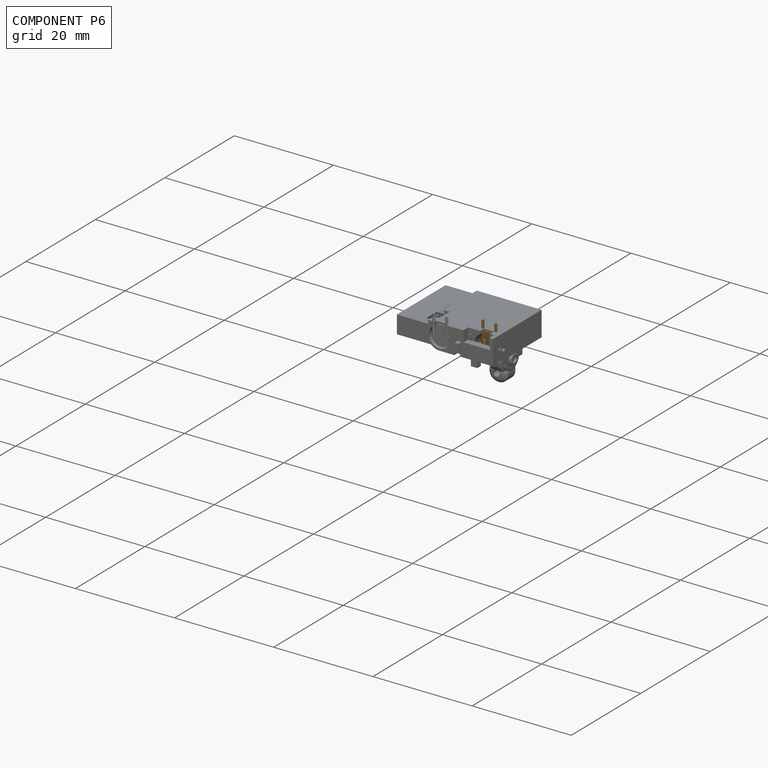
[diagram: component P6 — assembled]
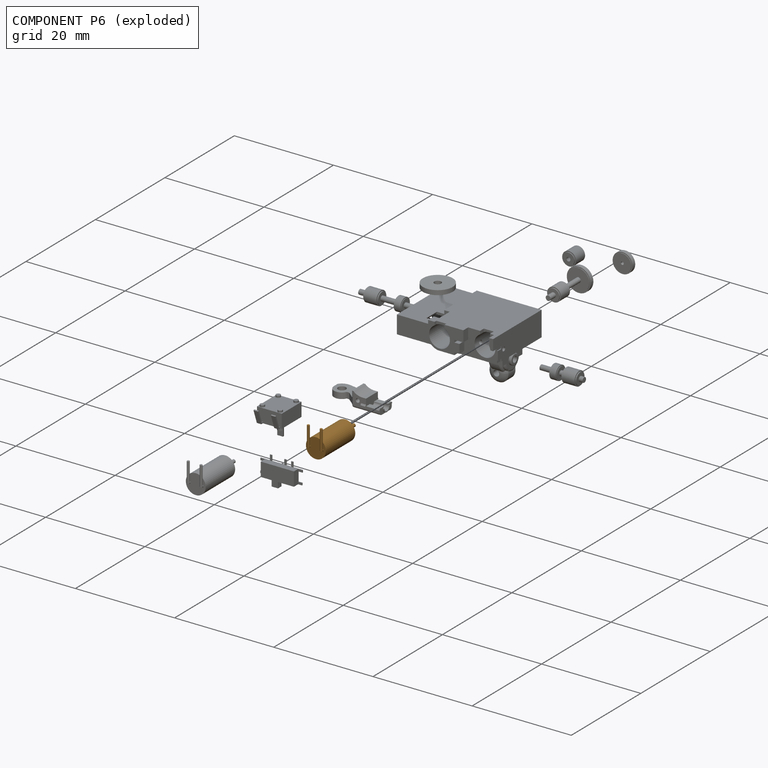
[diagram: component P6 — exploded]
COMPONENT P6 — geometry summary (no construction recipe available for this part):
  bounding box: 11.6 x 6.0 x 4.0 mm
  B-rep topology: 1 solid, 17 faces, 52 edges
  volume: 113 mm^3 (41% of its bounding box)
  symmetry: mirror-symmetric across its x mid-plane
Held by: PLANAR mate "Planar 8" to P2; SLIDER mate "Slider 3" to P2; FASTENED mate "Fastened 2" to P7.
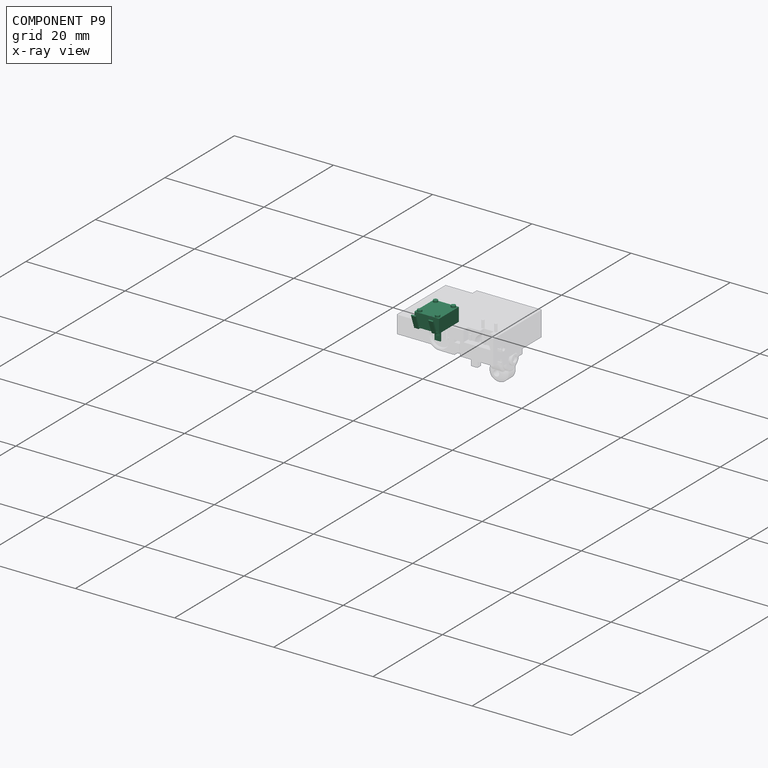
[diagram: component P9 — x-ray view]
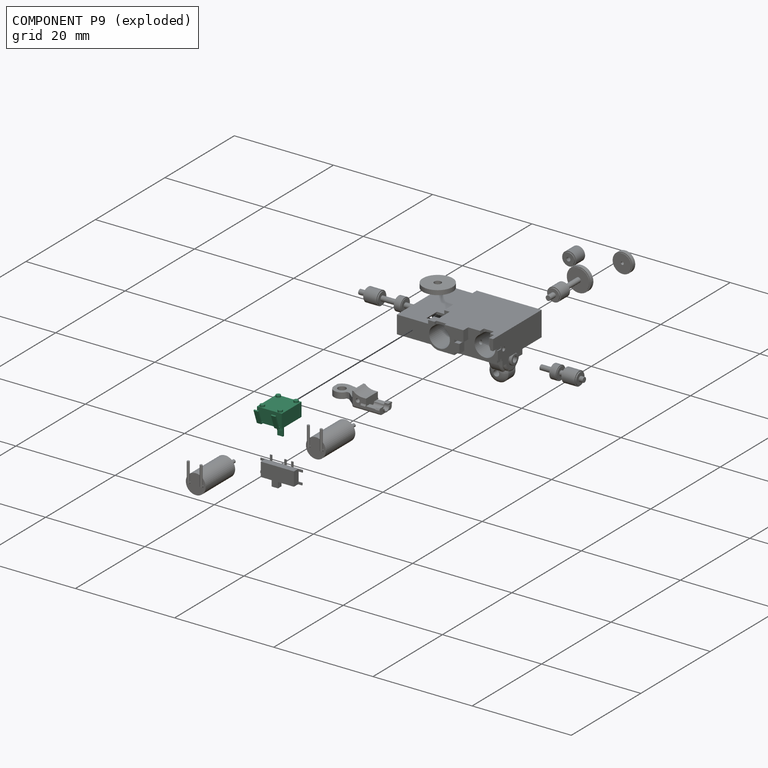
[diagram: component P9 — exploded]
COMPONENT P9 — recipe-attached (CADFS 00302408, mesh-verified: the recipe's output STEP matches this component's geometry to below the mesh-comparison resolution (tessellation chordal tolerance ~0.0161 mm)).
Held by: SLIDER mate "Slider 5" to P10; PLANAR mate "Planar 2" to P7; PLANAR mate "Planar 1" to P7; PLANAR mate "Planar 4" to P10; PLANAR mate "Planar 3" to P7; PLANAR mate "Planar 13" to P10.
Construction recipe (FeatureScript — the CAD program that rebuilds this solid; sketch coordinates are in the units given by the * unit suffixes, e.g. mm):

FeatureScript 1511;
import(path : "onshape/std/geometry.fs", version : "1511.0");
import(path : "onshape/std/common.fs", version : "1511.0");
const mm = millimeter;
const VERTEX = EntityType.VERTEX;
const EDGE = EntityType.EDGE;
const FACE = EntityType.FACE;
const BODY = EntityType.BODY;
function v(x, y){return vector(x, y);}
function OD(order){return orderDisambiguation(order);}
function OSD(set){return originalSetDisambiguation(set);}
function TD(topology){return topologyDisambiguation(topology);}
function TDD(query){return trueDependencyDisambiguation(query);}
function sQuery(a, b, c) {return sketchEntityQuery(a, b, c);}

annotation { "Feature Type Name" : "Feature", "Feature Type Description" : "" }
export const myFeature = defineFeature(function(context is Context, id is Id, definition is map)
    precondition{}
    {
        {
            var Q0;
            Q0=qCreatedBy(makeId("Top.planeOp"),FACE);
            var sketch = newSketch(context, id + "F0", { "sketchPlane" : qUnion([Q0])});
            skLineSegment(sketch, "E0.bottom", {"start": v(-2.5, 2.5) * mm, "end": v(3.2, 2.5) * mm});
            skLineSegment(sketch, "E0.top", {"start": v(-2.5, -2.5) * mm, "end": v(3.2, -2.5) * mm});
            skLineSegment(sketch, "E0.left", {"start": v(-2.5, 2.5) * mm, "end": v(-2.5, -2.5) * mm});
            skLineSegment(sketch, "E0.right", {"start": v(3.2, 2.5) * mm, "end": v(3.2, -2.5) * mm});
            skSolve(sketch);
        }
        {
            var Q0;
            Q0 = qSketchRegion(id + "F0", true);
            extrude(context, id + "F1", {"entities" : qUnion([Q0]), "oppositeDirection" : true, "depth" : 2.75 * mm});
        }
        {
            var Q0;
            Q0=makeQuery(id+"F1.opExtrude","CAP_FACE",FACE,{"disambiguationData":[OSD([sQuery(id+"F0.wireOp",EDGE,"E0.bottom"),sQuery(id+"F0.wireOp",EDGE,"E0.top"),sQuery(id+"F0.wireOp",EDGE,"E0.left"),sQuery(id+"F0.wireOp",EDGE,"E0.right")])],"isStart":true});
            var sketch = newSketch(context, id + "F2", { "sketchPlane" : qUnion([Q0])});
            skCircle(sketch, "E1", {"center": v(0, 0) * mm, "radius": 1.25 * mm});
            skCircle(sketch, "E2", {"center": v(0, 0) * mm, "radius": 0.58 * mm});
            skSolve(sketch);
        }
        {
            var Q0;
            Q0=makeQuery(id+"F2.imprint","IMPRINT",FACE,{"disambiguationData":[TD([[makeQuery(id+"F2.imprint","IMPRINT",EDGE,{"derivedFrom":sQuery(id+"F2.wireOp",EDGE,"E1")}),1.0]])]});
            extrude(context, id + "F3", {"entities" : qUnion([Q0]), "operationType" : NewBodyOperationType.ADD, "depth" : 0.23 * mm});
        }
        {
            var Q0;
            Q0=makeQuery(id+"F3.boolean.opBoolean","SPLIT",FACE,{"disambiguationData":[TD([makeQuery(id+"F3.opExtrude","SWEPT_FACE",FACE,{"disambiguationData":[OSD([sQuery(id+"F2.wireOp",EDGE,"E2")])]})])],"derivedFrom":makeQuery(id+"F1.opExtrude","CAP_FACE",FACE,{"disambiguationData":[OSD([sQuery(id+"F0.wireOp",EDGE,"E0.bottom"),sQuery(id+"F0.wireOp",EDGE,"E0.top"),sQuery(id+"F0.wireOp",EDGE,"E0.left"),sQuery(id+"F0.wireOp",EDGE,"E0.right")])],"isStart":true})});
            extrude(context, id + "F4", {"entities" : qUnion([Q0]), "operationType" : NewBodyOperationType.ADD, "depth" : 3.12 * mm});
        }
        {
            var Q0;
            Q0=makeQuery(id+"F4.opExtrude","CAP_FACE",FACE,{"disambiguationData":[OSD([sQuery(id+"F0.wireOp",EDGE,"E0.bottom"),sQuery(id+"F0.wireOp",EDGE,"E0.top"),sQuery(id+"F0.wireOp",EDGE,"E0.left"),sQuery(id+"F0.wireOp",EDGE,"E0.right")])],"isStart":false});
            var sketch = newSketch(context, id + "F5", { "sketchPlane" : qUnion([Q0])});
            skLineSegment(sketch, "E3", {"start": v(0.11, 0.57) * mm, "end": v(0.12, -0.57) * mm});
            skArc(sketch, "E4", {"start": v(0.11, 0.57) * mm, "mid": v(0.58, 0) * mm, "end": v(0.11, -0.57) * mm});
            skSolve(sketch);
        }
        {
            var Q0;
            Q0 = qSketchRegion(id + "F5", true);
            extrude(context, id + "F6", {"entities" : qUnion([Q0]), "operationType" : NewBodyOperationType.REMOVE, "oppositeDirection" : true, "depth" : 1.1 * mm});
        }
        {
            var Q0;
            Q0=makeQuery(id+"F1.opExtrude","CAP_FACE",FACE,{"disambiguationData":[OSD([sQuery(id+"F0.wireOp",EDGE,"E0.bottom"),sQuery(id+"F0.wireOp",EDGE,"E0.top"),sQuery(id+"F0.wireOp",EDGE,"E0.left"),sQuery(id+"F0.wireOp",EDGE,"E0.right")])],"isStart":false});
            var sketch = newSketch(context, id + "F7", { "sketchPlane" : qUnion([Q0])});
            skCircle(sketch, "E5", {"center": v(2.63, 1.8) * mm, "radius": 0.45 * mm});
            skCircle(sketch, "E6", {"center": v(-1.94, 1.8) * mm, "radius": 0.45 * mm});
            skCircle(sketch, "E7", {"center": v(-1.94, -1.8) * mm, "radius": 0.45 * mm});
            skCircle(sketch, "E8", {"center": v(2.63, -1.8) * mm, "radius": 0.45 * mm});
            skLineSegment(sketch, "E9.bottom", {"start": v(-1.94, -1.8) * mm, "end": v(2.63, -1.8) * mm, "construction": true});
            skLineSegment(sketch, "E9.top", {"start": v(-1.94, 1.8) * mm, "end": v(2.63, 1.8) * mm, "construction": true});
            skLineSegment(sketch, "E9.left", {"start": v(-1.94, -1.8) * mm, "end": v(-1.94, 1.8) * mm, "construction": true});
            skLineSegment(sketch, "E9.right", {"start": v(2.64, -1.8) * mm, "end": v(2.63, 1.8) * mm, "construction": true});
            skPoint(sketch, "E10", {"position": v(-2.5, 0) * mm});
            skPoint(sketch, "E11", {"position": v(0.35, -2.5) * mm});
            skPoint(sketch, "E12", {"position": v(-1.94, 0) * mm});
            skPoint(sketch, "E13", {"position": v(0.35, -1.8) * mm});
            skLineSegment(sketch, "E14", {"start": v(-2.5, 0) * mm, "end": v(-1.94, 0) * mm, "construction": true});
            skLineSegment(sketch, "E15", {"start": v(0.35, -2.5) * mm, "end": v(0.35, -1.8) * mm, "construction": true});
            skSolve(sketch);
        }
        {
            var Q0;
            Q0 = qSketchRegion(id + "F7", true);
            extrude(context, id + "F8", {"entities" : qUnion([Q0]), "operationType" : NewBodyOperationType.ADD, "depth" : 0.37 * mm});
        }
        {
            var Q0;
            Q0=qCreatedBy(makeId("Front.planeOp"),FACE);
            var sketch = newSketch(context, id + "F9", { "sketchPlane" : qUnion([Q0])});
            skLineSegment(sketch, "E16", {"start": v(3.2, 0) * mm, "end": v(3.66, 0) * mm});
            skLineSegment(sketch, "E17", {"start": v(3.66, 0) * mm, "end": v(4.62, -2.66) * mm});
            skLineSegment(sketch, "E18", {"start": v(4.62, -2.66) * mm, "end": v(4.38, -2.75) * mm});
            skLineSegment(sketch, "E19", {"start": v(3.2, -0.25) * mm, "end": v(3.48, -0.25) * mm});
            skLineSegment(sketch, "E20", {"start": v(3.48, -0.25) * mm, "end": v(4.38, -2.75) * mm});
            skLineSegment(sketch, "E21", {"start": v(3.2, 0) * mm, "end": v(3.2, -0.25) * mm});
            skSolve(sketch);
        }
        {
            var Q0;
            Q0 = qSketchRegion(id + "F9", true);
            extrude(context, id + "F10", {"entities" : qUnion([Q0]), "operationType" : NewBodyOperationType.ADD, "depth" : 2.2 * mm, "hasSecondDirection" : true, "secondDirectionOppositeDirection" : true, "secondDirectionDepth" : 2.2 * mm});
        }
        {
            var Q0;
            Q0=qCreatedBy(makeId("Front.planeOp"),FACE);
            var sketch = newSketch(context, id + "F11", { "sketchPlane" : qUnion([Q0])});
            skLineSegment(sketch, "E22.bottom", {"start": v(3.2, 0) * mm, "end": v(4.62, 0) * mm});
            skLineSegment(sketch, "E22.top", {"start": v(3.2, -2.75) * mm, "end": v(4.62, -2.75) * mm});
            skLineSegment(sketch, "E22.left", {"start": v(3.2, 0) * mm, "end": v(3.2, -2.75) * mm});
            skLineSegment(sketch, "E22.right", {"start": v(4.62, 0) * mm, "end": v(4.62, -2.75) * mm});
            skSolve(sketch);
        }
        {
            var Q0;
            Q0 = qSketchRegion(id + "F11", true);
            extrude(context, id + "F12", {"entities" : qUnion([Q0]), "operationType" : NewBodyOperationType.REMOVE, "oppositeDirection" : true, "depth" : 1.3 * mm, "hasSecondDirection" : true, "secondDirectionOppositeDirection" : false, "secondDirectionDepth" : 1.3 * mm});
        }
    });
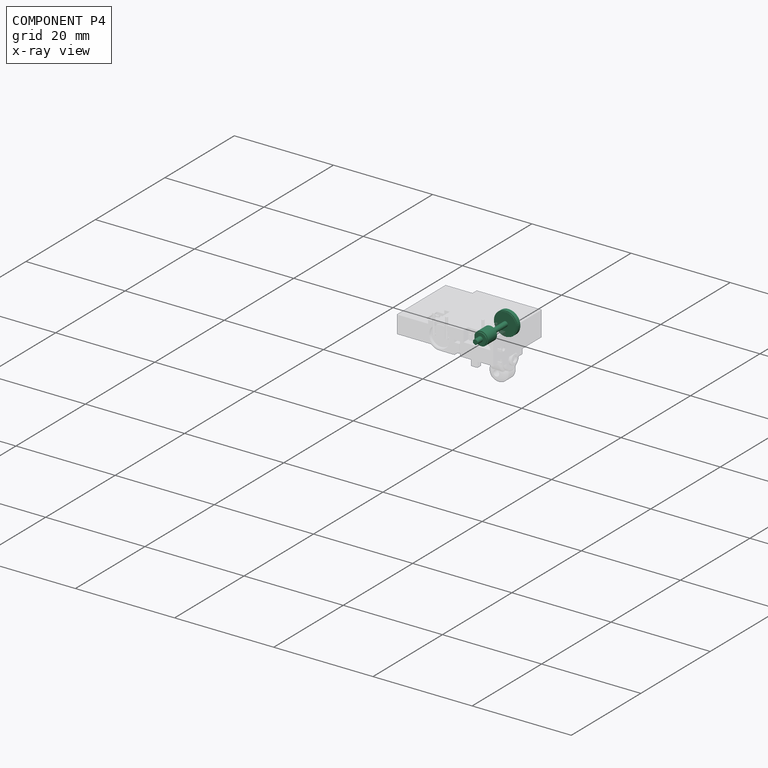
[diagram: component P4 — x-ray view]
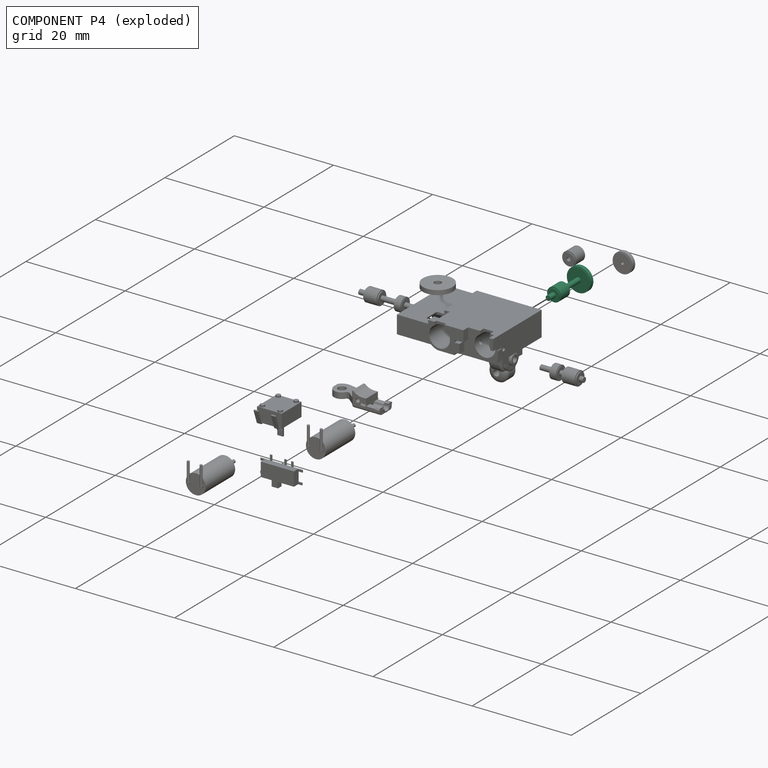
[diagram: component P4 — exploded]
COMPONENT P4 — recipe-attached (CADFS 00333566, mesh-verified: the recipe's output STEP matches this component's geometry to below the mesh-comparison resolution (tessellation chordal tolerance ~0.018 mm)).
Held by: SLIDER mate "Slider 2" to P7; PLANAR mate "Planar 7" to P7.
Construction recipe (FeatureScript — the CAD program that rebuilds this solid; sketch coordinates are in the units given by the * unit suffixes, e.g. mm):

FeatureScript 1511;
import(path : "onshape/std/geometry.fs", version : "1511.0");
import(path : "onshape/std/common.fs", version : "1511.0");
const mm = millimeter;
const VERTEX = EntityType.VERTEX;
const EDGE = EntityType.EDGE;
const FACE = EntityType.FACE;
const BODY = EntityType.BODY;
function v(x, y){return vector(x, y);}
function OD(order){return orderDisambiguation(order);}
function OSD(set){return originalSetDisambiguation(set);}
function TD(topology){return topologyDisambiguation(topology);}
function TDD(query){return trueDependencyDisambiguation(query);}
function sQuery(a, b, c) {return sketchEntityQuery(a, b, c);}

annotation { "Feature Type Name" : "Feature", "Feature Type Description" : "" }
export const myFeature = defineFeature(function(context is Context, id is Id, definition is map)
    precondition{}
    {
        {
            var Q0;
            Q0=qCreatedBy(makeId("Right.planeOp"),FACE);
            var sketch = newSketch(context, id + "F0", { "sketchPlane" : qUnion([Q0])});
            skLineSegment(sketch, "E0", {"start": v(-1.5, 0) * mm, "end": v(-1.5, 0.5) * mm});
            skLineSegment(sketch, "E1", {"start": v(-1.5, 0.5) * mm, "end": v(0, 0.5) * mm});
            skLineSegment(sketch, "E2", {"start": v(0, 0.5) * mm, "end": v(0, 1.4) * mm});
            skLineSegment(sketch, "E3", {"start": v(0, 1.4) * mm, "end": v(3, 1.4) * mm});
            skLineSegment(sketch, "E4", {"start": v(3, 1.4) * mm, "end": v(3, 0.5) * mm});
            skLineSegment(sketch, "E5", {"start": v(3, 0.5) * mm, "end": v(7.2, 0.5) * mm});
            skLineSegment(sketch, "E6", {"start": v(7.2, 0.5) * mm, "end": v(7.2, 2.4) * mm});
            skLineSegment(sketch, "E7", {"start": v(7.2, 2.4) * mm, "end": v(8.2, 2.4) * mm});
            skLineSegment(sketch, "E8", {"start": v(8.2, 2.4) * mm, "end": v(8.2, 0.5) * mm});
            skLineSegment(sketch, "E9", {"start": v(8.2, 0.5) * mm, "end": v(8.4, 0.5) * mm});
            skLineSegment(sketch, "E10", {"start": v(8.4, 0.5) * mm, "end": v(8.4, 0) * mm});
            skLineSegment(sketch, "E11", {"start": v(8.4, 0) * mm, "end": v(-1.5, 0) * mm});
            skSolve(sketch);
        }
        {
            var Q0;
            Q0=qSketchRegion(id+"F0",true);
            var Q1;
            Q1=sQuery(id+"F0.wireOp",EDGE,"E11");
            revolve(context, id + "F1", {"entities" : qUnion([Q0]), "axis" : qUnion([Q1]), "revolveType" : RevolveType.FULL});
        }
        {
            var Q0;
            Q0=qCreatedBy(makeId("Right.planeOp"),FACE);
            var sketch = newSketch(context, id + "F2", { "sketchPlane" : qUnion([Q0])});
            skLineSegment(sketch, "E12.0", {"start": v(0, 1.4) * mm, "end": v(3, 1.4) * mm});
            skLineSegment(sketch, "E13.0", {"start": v(0, 0.5) * mm, "end": v(0, 1.4) * mm});
            skLineSegment(sketch, "E14.0", {"start": v(3, 1.4) * mm, "end": v(3, 0.5) * mm});
            skLineSegment(sketch, "E15.bottom", {"start": v(0, 1.4) * mm, "end": v(0.2, 1.4) * mm});
            skLineSegment(sketch, "E15.top", {"start": v(0, 1.2) * mm, "end": v(0.2, 1.2) * mm});
            skLineSegment(sketch, "E15.left", {"start": v(0, 1.4) * mm, "end": v(0, 1.2) * mm});
            skLineSegment(sketch, "E15.right", {"start": v(0.2, 1.4) * mm, "end": v(0.2, 1.2) * mm});
            skLineSegment(sketch, "E16.bottom", {"start": v(3, 1.4) * mm, "end": v(2.8, 1.4) * mm});
            skLineSegment(sketch, "E16.top", {"start": v(3, 1.2) * mm, "end": v(2.8, 1.2) * mm});
            skLineSegment(sketch, "E16.left", {"start": v(3, 1.4) * mm, "end": v(3, 1.2) * mm});
            skLineSegment(sketch, "E16.right", {"start": v(2.8, 1.4) * mm, "end": v(2.8, 1.2) * mm});
            skSolve(sketch);
        }
        {
            var Q0;
            Q0 = qSketchRegion(id + "F2", true);
            var Q1;
            Q1=sQuery(id+"F0.wireOp",EDGE,"E11");
            revolve(context, id + "F3", {"operationType" : NewBodyOperationType.REMOVE, "surfaceOperationType" : NewSurfaceOperationType.NEW, "entities" : qUnion([Q0]), "axis" : qUnion([Q1]), "revolveType" : RevolveType.FULL, "oppositeDirection" : true});
        }
        {
            var Q0;
            Q0=qCreatedBy(makeId("Right.planeOp"),FACE);
            var sketch = newSketch(context, id + "F4", { "sketchPlane" : qUnion([Q0])});
            skLineSegment(sketch, "E17.0", {"start": v(7.2, 2.4) * mm, "end": v(8.2, 2.4) * mm});
            skLineSegment(sketch, "E18", {"start": v(8.2, -2.4) * mm, "end": v(7.2, -2.4) * mm});
            skLineSegment(sketch, "E19.0", {"start": v(8.2, 2.4) * mm, "end": v(8.2, 0.5) * mm});
            skLineSegment(sketch, "E20.bottom", {"start": v(8.2, 2.4) * mm, "end": v(8.1, 2.4) * mm});
            skLineSegment(sketch, "E20.top", {"start": v(8.2, 2.2) * mm, "end": v(8.1, 2.2) * mm});
            skLineSegment(sketch, "E20.left", {"start": v(8.2, 2.4) * mm, "end": v(8.2, 2.2) * mm});
            skLineSegment(sketch, "E20.right", {"start": v(8.1, 2.4) * mm, "end": v(8.1, 2.2) * mm});
            skLineSegment(sketch, "E21.bottom", {"start": v(7.2, 2.4) * mm, "end": v(7.3, 2.4) * mm});
            skLineSegment(sketch, "E21.top", {"start": v(7.2, 2.2) * mm, "end": v(7.3, 2.2) * mm});
            skLineSegment(sketch, "E21.left", {"start": v(7.2, 2.4) * mm, "end": v(7.2, 2.2) * mm});
            skLineSegment(sketch, "E21.right", {"start": v(7.3, 2.4) * mm, "end": v(7.3, 2.2) * mm});
            skSolve(sketch);
        }
        {
            var Q0;
            Q0 = qSketchRegion(id + "F4", true);
            var Q1;
            Q1=sQuery(id+"F0.wireOp",EDGE,"E11");
            revolve(context, id + "F5", {"operationType" : NewBodyOperationType.REMOVE, "surfaceOperationType" : NewSurfaceOperationType.NEW, "entities" : qUnion([Q0]), "axis" : qUnion([Q1]), "revolveType" : RevolveType.FULL, "oppositeDirection" : true});
        }
    });
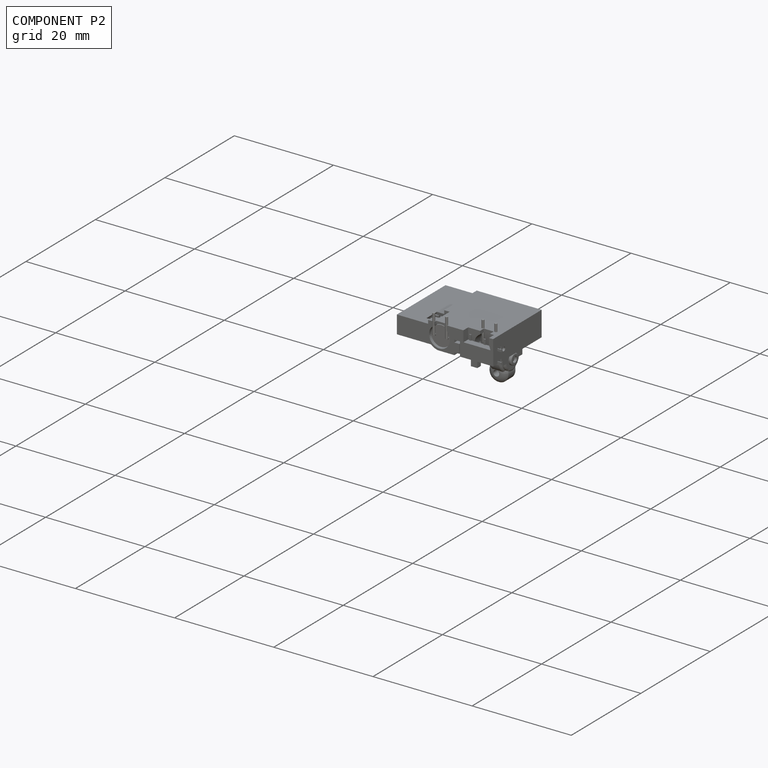
[diagram: component P2 — assembled]
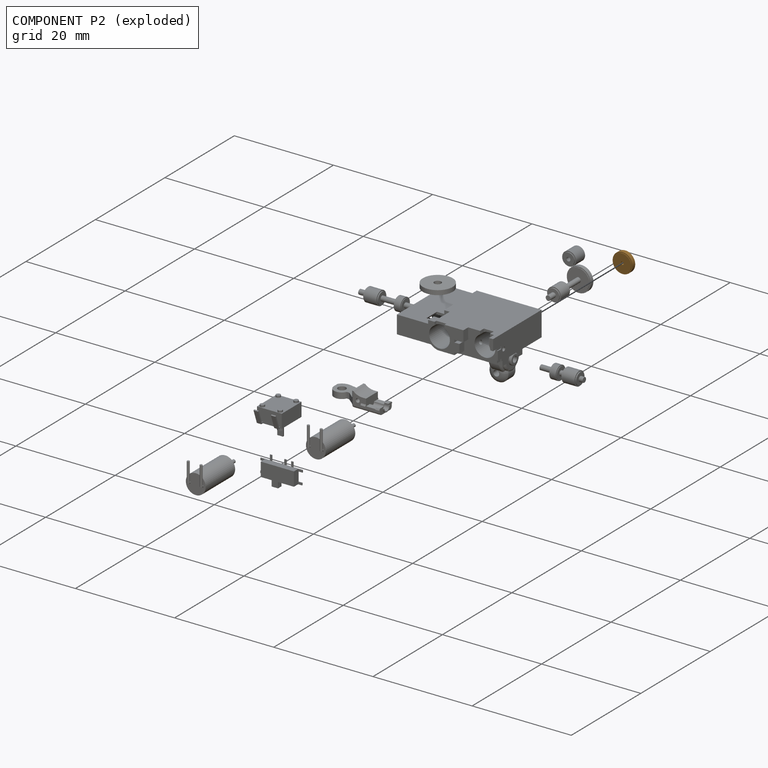
[diagram: component P2 — exploded]
COMPONENT P2 — geometry summary (no construction recipe available for this part):
  bounding box: 4.0 x 4.0 x 1.0 mm
  B-rep topology: 1 solid, 8 faces, 24 edges
  volume: 12 mm^3 (74% of its bounding box)
  symmetry: 2-fold rotationally symmetric about the x axis; 2-fold rotationally symmetric about the y axis; revolution-symmetric about the z axis through its bounding-box center; mirror-symmetric across its x mid-plane, y mid-plane, z mid-plane
Held by: PLANAR mate "Planar 8" to P6; SLIDER mate "Slider 3" to P6.
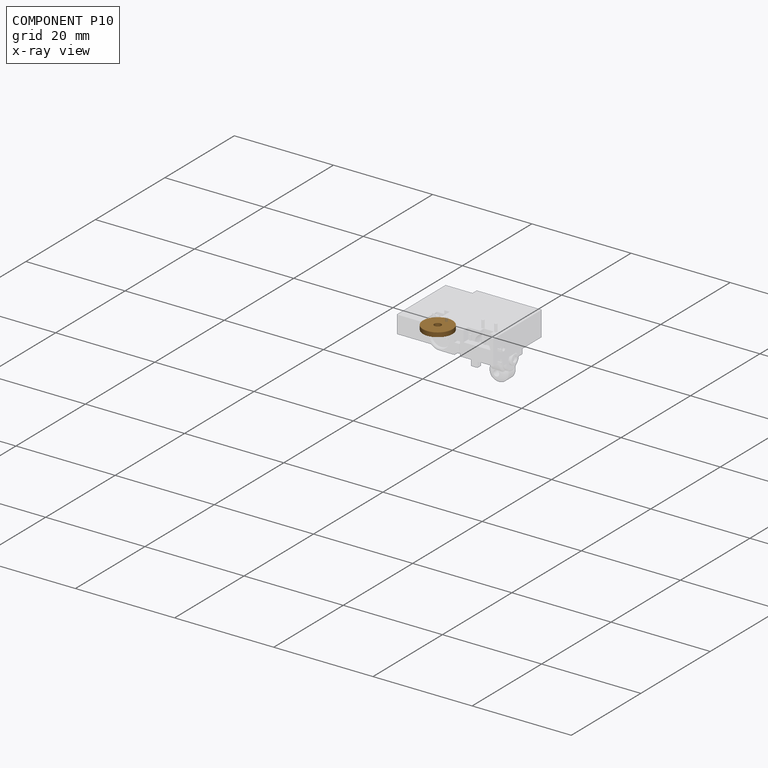
[diagram: component P10 — x-ray view]
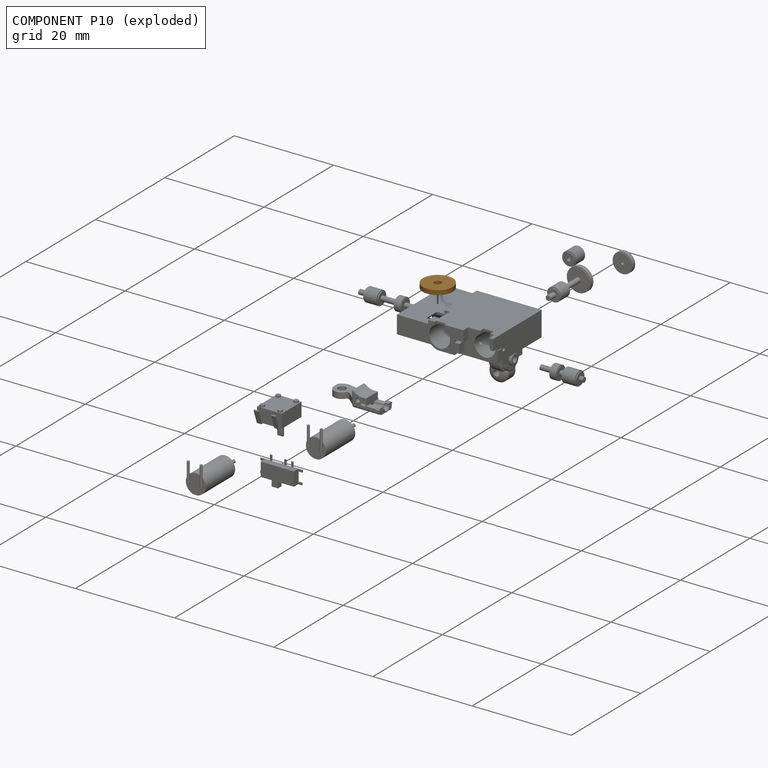
[diagram: component P10 — exploded]
COMPONENT P10 — geometry summary (no construction recipe available for this part):
  bounding box: 6.0 x 6.0 x 1.0 mm
  B-rep topology: 1 solid, 6 faces, 18 edges
  volume: 26 mm^3 (73% of its bounding box)
  symmetry: revolution-symmetric about the z axis through its bounding-box center; mirror-symmetric across its x mid-plane, y mid-plane
Held by: SLIDER mate "Slider 5" to P9; PLANAR mate "Planar 4" to P9; PLANAR mate "Planar 13" to P9.
